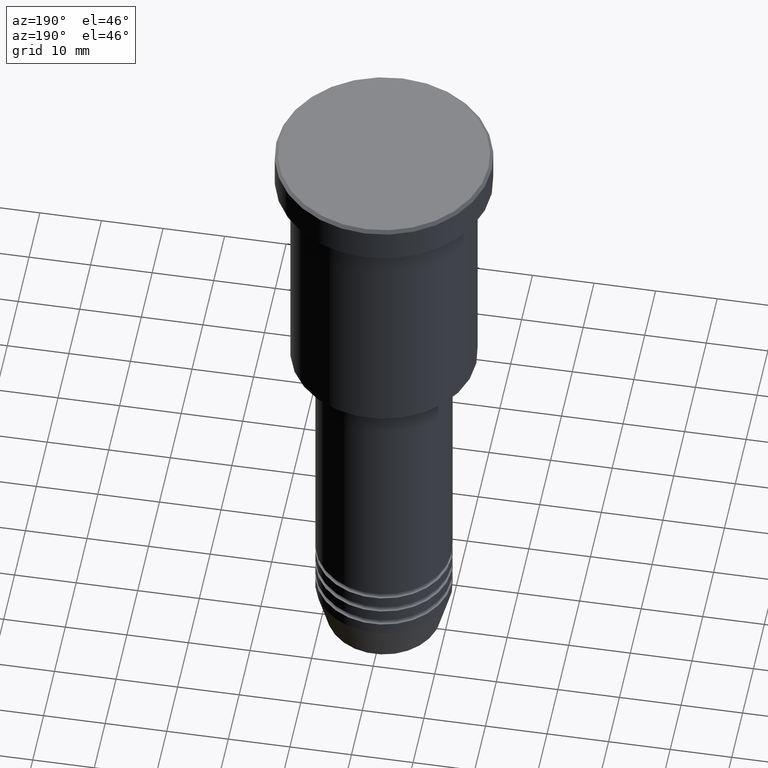
[diagram: clean part render]
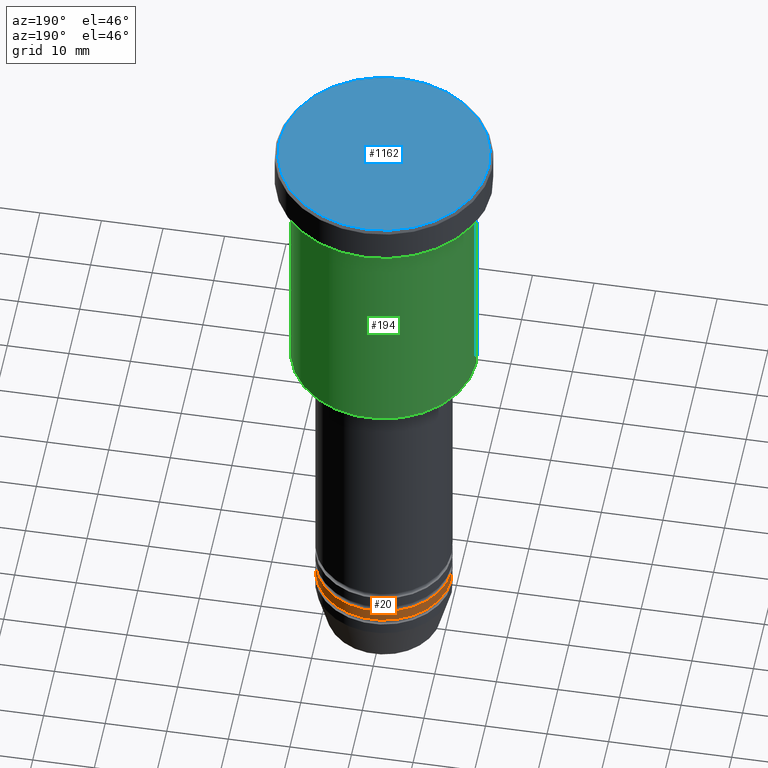
[diagram: same view with three faces highlighted in distinct colors, each labeled with its STEP entity id]
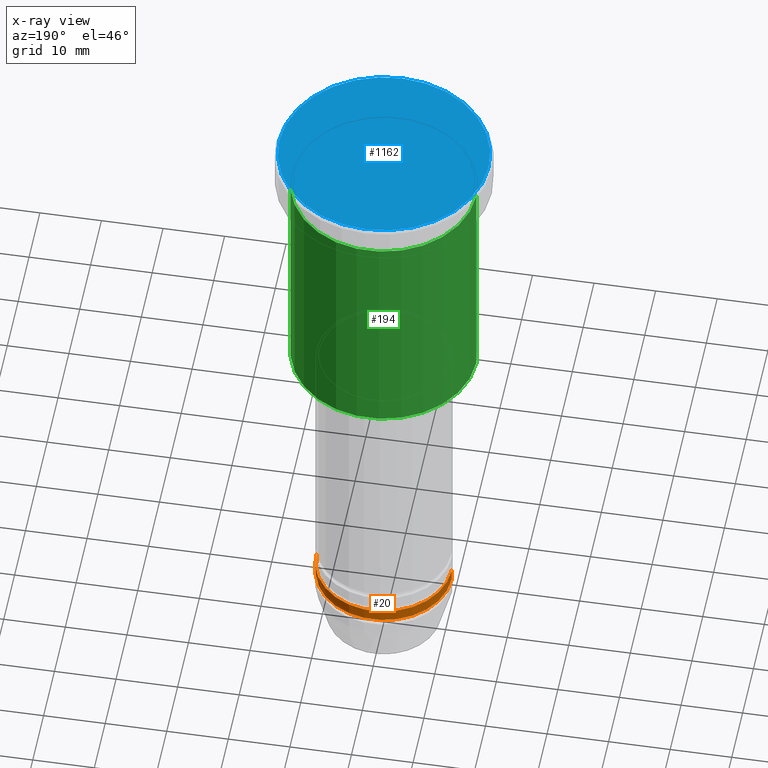
[diagram: x-ray of the same camera — body ghosted, the three highlighted faces saturated]
A machine part, auxiliary view with three faces highlighted in distinct colors.
The next image is the same camera in x-ray (body ghosted, the three faces saturated) — at least one of them is partly hidden behind the body in this view.
Their STEP definitions:

[orange] entity #20 — the highlighted cylindrical surface (partial cylindrical patch) has radius 11 mm, axis along (-0, -0, 1).
#11 = CIRCLE ( 'NONE', #101, 11.00000000000000000 ) ;
#20 = ADVANCED_FACE ( 'NONE', ( #442 ), #262, .T. ) ;
#31 = CIRCLE ( 'NONE', #518, 11.00000000000000000 ) ;
#101 = AXIS2_PLACEMENT_3D ( 'NONE', #1139, #618, #131 ) ;
#106 = CARTESIAN_POINT ( 'NONE',  ( 0.000000000000000000, 0.000000000000000000, -95.99999999999997158 ) ) ;
#107 = CARTESIAN_POINT ( 'NONE',  ( 11.00000000000000000, 0.000000000000000000, -95.99999999999997158 ) ) ;
#127 = CARTESIAN_POINT ( 'NONE',  ( 11.00000000000000000, 0.000000000000000000, 0.000000000000000000 ) ) ;
#129 = VERTEX_POINT ( 'NONE', #107 ) ;
#131 = DIRECTION ( 'NONE',  ( 1.000000000000000000, 0.000000000000000000, 0.000000000000000000 ) ) ;
#203 = ORIENTED_EDGE ( 'NONE', *, *, #1038, .T. ) ;
#256 = EDGE_CURVE ( 'NONE', #669, #896, #11, .T. ) ;
#262 = CYLINDRICAL_SURFACE ( 'NONE', #1005, 11.00000000000000000 ) ;
#324 = CARTESIAN_POINT ( 'NONE',  ( -11.00000000000000000, 1.347111479062088405E-15, 0.000000000000000000 ) ) ;
#335 = VERTEX_POINT ( 'NONE', #1170 ) ;
#353 = ORIENTED_EDGE ( 'NONE', *, *, #1026, .F. ) ;
#427 = ORIENTED_EDGE ( 'NONE', *, *, #256, .F. ) ;
#442 = FACE_OUTER_BOUND ( 'NONE', #605, .T. ) ;
#518 = AXIS2_PLACEMENT_3D ( 'NONE', #106, #596, #852 ) ;
#558 = EDGE_CURVE ( 'NONE', #129, #335, #31, .T. ) ;
#596 = DIRECTION ( 'NONE',  ( -0.000000000000000000, -0.000000000000000000, 1.000000000000000000 ) ) ;
#605 = EDGE_LOOP ( 'NONE', ( #772, #203, #427, #353 ) ) ;
#617 = VECTOR ( 'NONE', #692, 1000.000000000000000 ) ;
#618 = DIRECTION ( 'NONE',  ( -0.000000000000000000, -0.000000000000000000, 1.000000000000000000 ) ) ;
#644 = DIRECTION ( 'NONE',  ( 1.000000000000000000, 0.000000000000000000, 0.000000000000000000 ) ) ;
#669 = VERTEX_POINT ( 'NONE', #781 ) ;
#678 = DIRECTION ( 'NONE',  ( -0.000000000000000000, -0.000000000000000000, 1.000000000000000000 ) ) ;
#692 = DIRECTION ( 'NONE',  ( -0.000000000000000000, -0.000000000000000000, 1.000000000000000000 ) ) ;
#718 = CARTESIAN_POINT ( 'NONE',  ( 0.000000000000000000, 0.000000000000000000, 0.000000000000000000 ) ) ;
#772 = ORIENTED_EDGE ( 'NONE', *, *, #558, .T. ) ;
#775 = LINE ( 'NONE', #127, #862 ) ;
#781 = CARTESIAN_POINT ( 'NONE',  ( 11.00000000000000000, 0.000000000000000000, -93.99999999999998579 ) ) ;
#852 = DIRECTION ( 'NONE',  ( 1.000000000000000000, 0.000000000000000000, 0.000000000000000000 ) ) ;
#862 = VECTOR ( 'NONE', #678, 1000.000000000000000 ) ;
#896 = VERTEX_POINT ( 'NONE', #902 ) ;
#902 = CARTESIAN_POINT ( 'NONE',  ( -11.00000000000000000, 1.347111479062088405E-15, -93.99999999999998579 ) ) ;
#955 = LINE ( 'NONE', #324, #617 ) ;
#1005 = AXIS2_PLACEMENT_3D ( 'NONE', #718, #1077, #644 ) ;
#1026 = EDGE_CURVE ( 'NONE', #129, #669, #775, .T. ) ;
#1038 = EDGE_CURVE ( 'NONE', #335, #896, #955, .T. ) ;
#1077 = DIRECTION ( 'NONE',  ( -0.000000000000000000, -0.000000000000000000, 1.000000000000000000 ) ) ;
#1139 = CARTESIAN_POINT ( 'NONE',  ( 0.000000000000000000, 0.000000000000000000, -93.99999999999998579 ) ) ;
#1170 = CARTESIAN_POINT ( 'NONE',  ( -11.00000000000000000, 1.347111479062088405E-15, -95.99999999999997158 ) ) ;

[blue] entity #1162 — the highlighted planar face has unit normal (0, -0, 1).
#32 = CIRCLE ( 'NONE', #500, 16.99999999999998579 ) ;
#38 = CARTESIAN_POINT ( 'NONE',  ( -16.99999999999998579, 0.000000000000000000, 0.000000000000000000 ) ) ;
#81 = ORIENTED_EDGE ( 'NONE', *, *, #1091, .T. ) ;
#93 = DIRECTION ( 'NONE',  ( 1.000000000000000000, 0.000000000000000000, 0.000000000000000000 ) ) ;
#137 = CARTESIAN_POINT ( 'NONE',  ( 16.99999999999998579, 2.112515728529183278E-15, 0.000000000000000000 ) ) ;
#170 = DIRECTION ( 'NONE',  ( -0.000000000000000000, -0.000000000000000000, 1.000000000000000000 ) ) ;
#261 = EDGE_LOOP ( 'NONE', ( #360, #81 ) ) ;
#330 = PLANE ( 'NONE',  #800 ) ;
#339 = DIRECTION ( 'NONE',  ( 1.000000000000000000, 0.000000000000000000, 0.000000000000000000 ) ) ;
#360 = ORIENTED_EDGE ( 'NONE', *, *, #405, .T. ) ;
#405 = EDGE_CURVE ( 'NONE', #719, #725, #720, .T. ) ;
#500 = AXIS2_PLACEMENT_3D ( 'NONE', #881, #813, #707 ) ;
#643 = CARTESIAN_POINT ( 'NONE',  ( 0.000000000000000000, 0.000000000000000000, 0.000000000000000000 ) ) ;
#707 = DIRECTION ( 'NONE',  ( 1.000000000000000000, 0.000000000000000000, 0.000000000000000000 ) ) ;
#719 = VERTEX_POINT ( 'NONE', #38 ) ;
#720 = CIRCLE ( 'NONE', #875, 16.99999999999998579 ) ;
#723 = CARTESIAN_POINT ( 'NONE',  ( 0.000000000000000000, 0.000000000000000000, 0.000000000000000000 ) ) ;
#724 = FACE_OUTER_BOUND ( 'NONE', #261, .T. ) ;
#725 = VERTEX_POINT ( 'NONE', #137 ) ;
#800 = AXIS2_PLACEMENT_3D ( 'NONE', #643, #807, #339 ) ;
#807 = DIRECTION ( 'NONE',  ( 0.000000000000000000, -0.000000000000000000, 1.000000000000000000 ) ) ;
#813 = DIRECTION ( 'NONE',  ( -0.000000000000000000, -0.000000000000000000, 1.000000000000000000 ) ) ;
#875 = AXIS2_PLACEMENT_3D ( 'NONE', #723, #170, #93 ) ;
#881 = CARTESIAN_POINT ( 'NONE',  ( 0.000000000000000000, 0.000000000000000000, 0.000000000000000000 ) ) ;
#1091 = EDGE_CURVE ( 'NONE', #725, #719, #32, .T. ) ;
#1162 = ADVANCED_FACE ( 'NONE', ( #724 ), #330, .T. ) ;

[green] entity #194 — the highlighted cylindrical surface (partial cylindrical patch) has radius 15 mm, axis along (-0, -0, 1).
#75 = EDGE_CURVE ( 'NONE', #1066, #285, #1126, .T. ) ;
#82 = AXIS2_PLACEMENT_3D ( 'NONE', #623, #323, #1051 ) ;
#130 = CARTESIAN_POINT ( 'NONE',  ( 0.000000000000000000, 0.000000000000000000, -45.49999999999998579 ) ) ;
#169 = CARTESIAN_POINT ( 'NONE',  ( 15.00000000000000000, 0.000000000000000000, -6.999999999999995559 ) ) ;
#174 = EDGE_CURVE ( 'NONE', #1009, #768, #433, .T. ) ;
#194 = ADVANCED_FACE ( 'NONE', ( #613 ), #1160, .T. ) ;
#285 = VERTEX_POINT ( 'NONE', #454 ) ;
#305 = DIRECTION ( 'NONE',  ( -1.000000000000000000, 0.000000000000000000, 0.000000000000000000 ) ) ;
#323 = DIRECTION ( 'NONE',  ( -0.000000000000000000, -0.000000000000000000, 1.000000000000000000 ) ) ;
#385 = CARTESIAN_POINT ( 'NONE',  ( -15.00000000000000000, 1.836970198721029589E-15, 0.000000000000000000 ) ) ;
#402 = DIRECTION ( 'NONE',  ( 1.000000000000000000, 0.000000000000000000, 0.000000000000000000 ) ) ;
#412 = CIRCLE ( 'NONE', #876, 15.00000000000000000 ) ;
#433 = LINE ( 'NONE', #1149, #631 ) ;
#454 = CARTESIAN_POINT ( 'NONE',  ( -15.00000000000000000, 1.836970198721029589E-15, -6.999999999999995559 ) ) ;
#456 = EDGE_LOOP ( 'NONE', ( #732, #893, #540, #1159 ) ) ;
#523 = DIRECTION ( 'NONE',  ( -0.000000000000000000, -0.000000000000000000, 1.000000000000000000 ) ) ;
#540 = ORIENTED_EDGE ( 'NONE', *, *, #744, .F. ) ;
#609 = CARTESIAN_POINT ( 'NONE',  ( 0.000000000000000000, 0.000000000000000000, -6.999999999999995559 ) ) ;
#613 = FACE_OUTER_BOUND ( 'NONE', #456, .T. ) ;
#619 = CARTESIAN_POINT ( 'NONE',  ( 15.00000000000000000, 0.000000000000000000, -45.49999999999998579 ) ) ;
#623 = CARTESIAN_POINT ( 'NONE',  ( 0.000000000000000000, 0.000000000000000000, 0.000000000000000000 ) ) ;
#631 = VECTOR ( 'NONE', #523, 1000.000000000000000 ) ;
#649 = AXIS2_PLACEMENT_3D ( 'NONE', #609, #1148, #402 ) ;
#677 = DIRECTION ( 'NONE',  ( -0.000000000000000000, -0.000000000000000000, 1.000000000000000000 ) ) ;
#710 = EDGE_CURVE ( 'NONE', #1009, #1066, #412, .T. ) ;
#732 = ORIENTED_EDGE ( 'NONE', *, *, #710, .T. ) ;
#744 = EDGE_CURVE ( 'NONE', #768, #285, #1002, .T. ) ;
#768 = VERTEX_POINT ( 'NONE', #169 ) ;
#870 = CARTESIAN_POINT ( 'NONE',  ( -15.00000000000000000, 1.836970198721029589E-15, -45.49999999999998579 ) ) ;
#876 = AXIS2_PLACEMENT_3D ( 'NONE', #130, #956, #305 ) ;
#889 = VECTOR ( 'NONE', #677, 1000.000000000000000 ) ;
#893 = ORIENTED_EDGE ( 'NONE', *, *, #75, .T. ) ;
#956 = DIRECTION ( 'NONE',  ( -0.000000000000000000, -0.000000000000000000, 1.000000000000000000 ) ) ;
#1002 = CIRCLE ( 'NONE', #649, 15.00000000000000000 ) ;
#1009 = VERTEX_POINT ( 'NONE', #619 ) ;
#1051 = DIRECTION ( 'NONE',  ( 1.000000000000000000, 0.000000000000000000, 0.000000000000000000 ) ) ;
#1066 = VERTEX_POINT ( 'NONE', #870 ) ;
#1126 = LINE ( 'NONE', #385, #889 ) ;
#1148 = DIRECTION ( 'NONE',  ( -0.000000000000000000, -0.000000000000000000, 1.000000000000000000 ) ) ;
#1149 = CARTESIAN_POINT ( 'NONE',  ( 15.00000000000000000, 0.000000000000000000, 0.000000000000000000 ) ) ;
#1159 = ORIENTED_EDGE ( 'NONE', *, *, #174, .F. ) ;
#1160 = CYLINDRICAL_SURFACE ( 'NONE', #82, 15.00000000000000000 ) ;